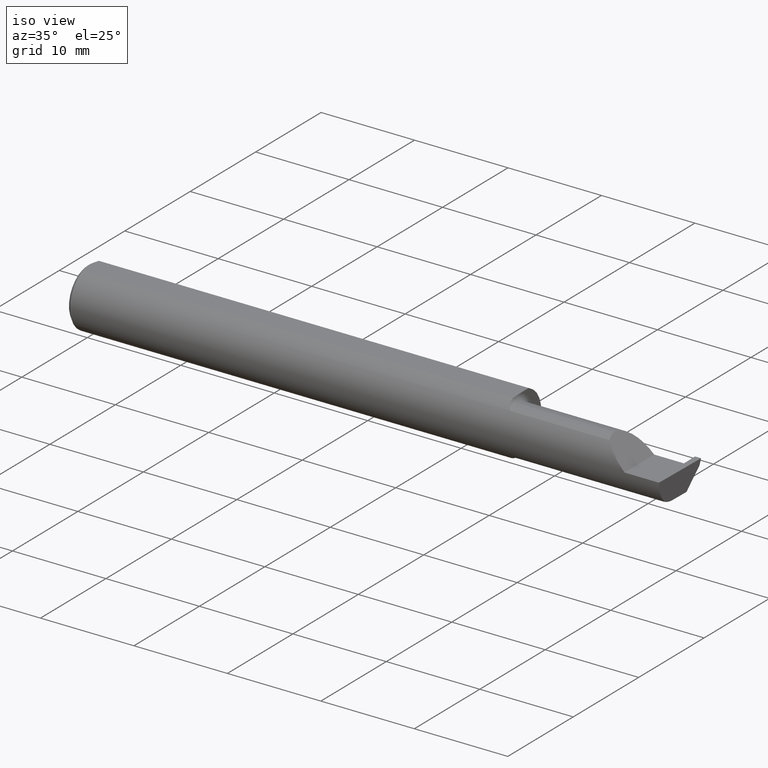
[diagram: clean part render]
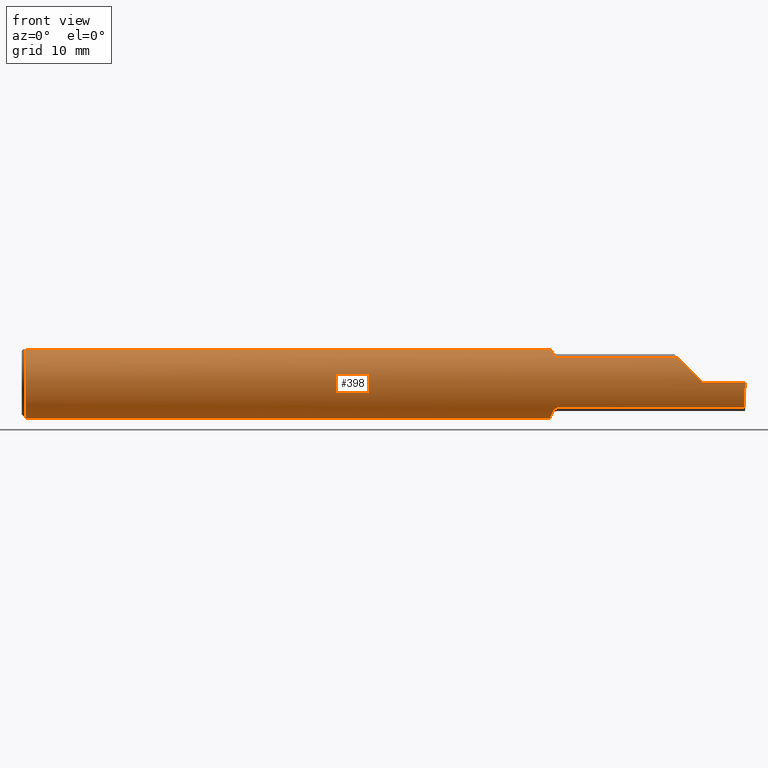
[diagram: tour spotlight — one face highlighted and labeled with its STEP entity id]
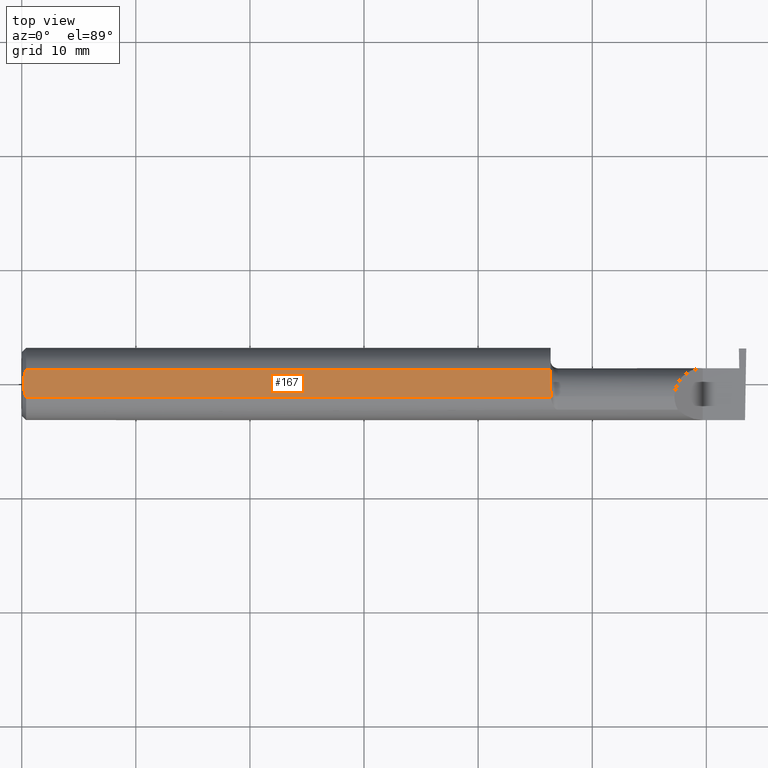
[diagram: tour spotlight — one face highlighted and labeled with its STEP entity id]
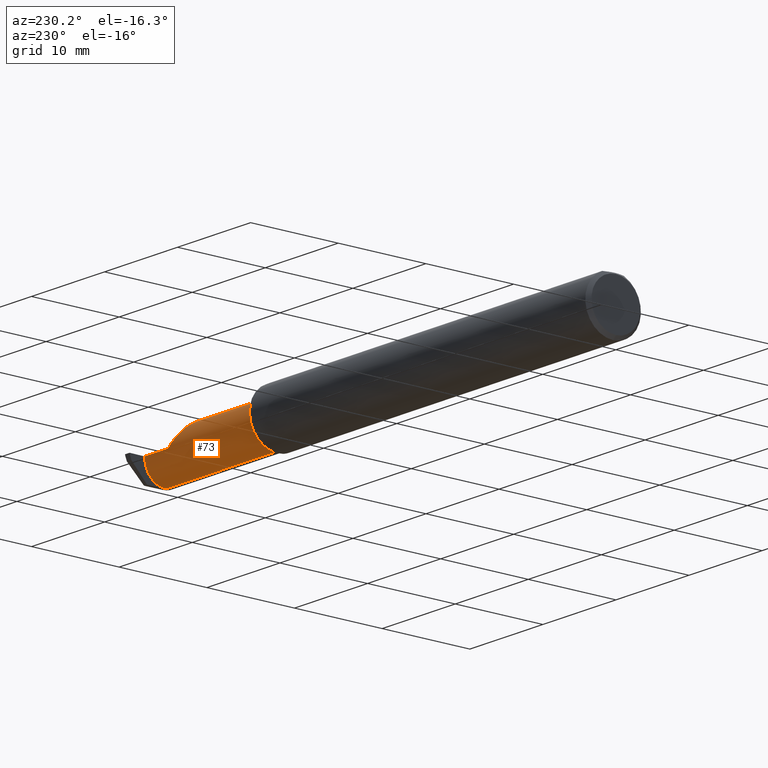
[diagram: tour spotlight — one face highlighted and labeled with its STEP entity id]
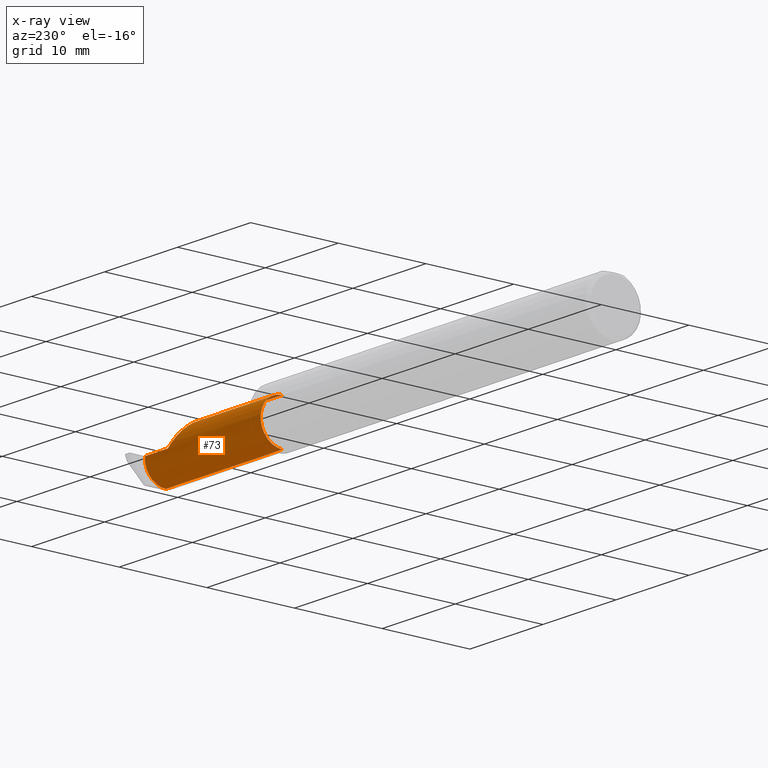
[diagram: x-ray of the same camera — body ghosted, this tour face saturated]
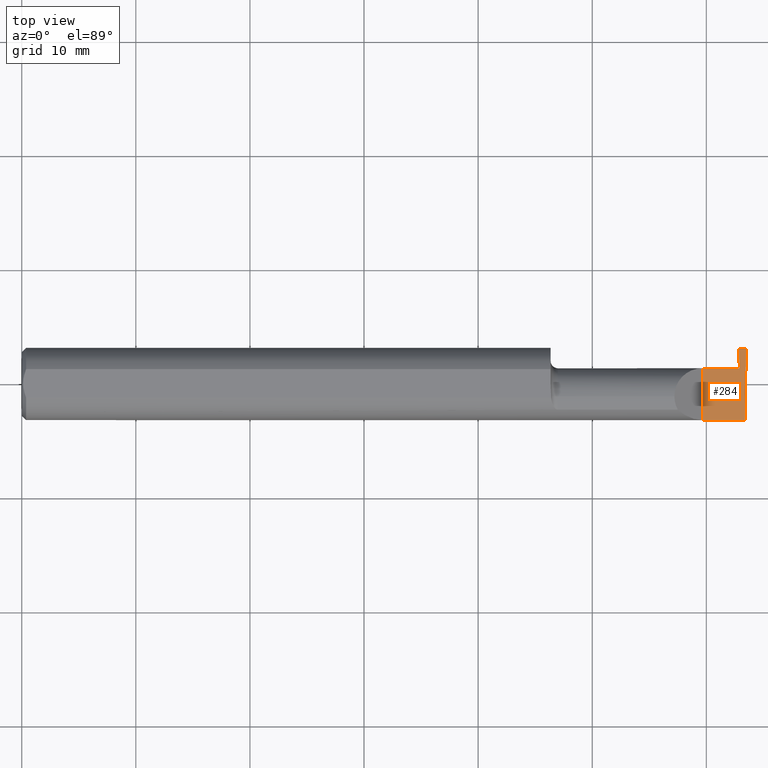
[diagram: tour spotlight — one face highlighted and labeled with its STEP entity id]
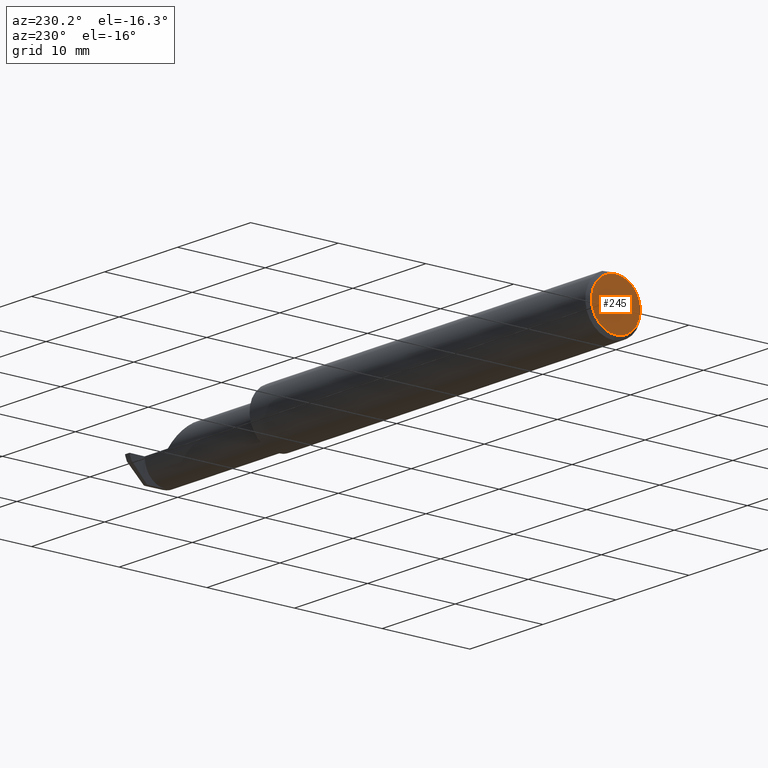
[diagram: tour spotlight — one face highlighted and labeled with its STEP entity id]
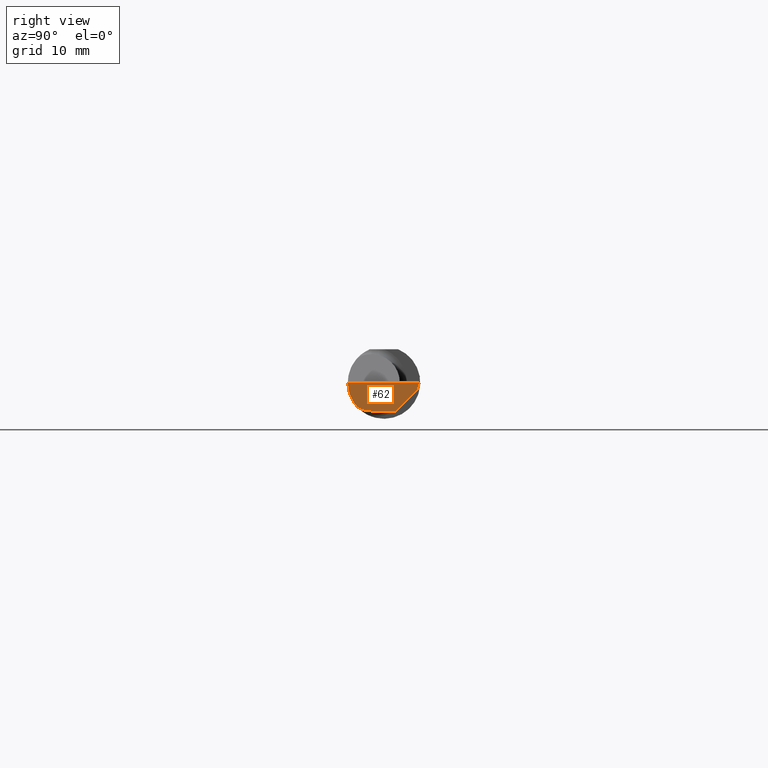
[diagram: tour spotlight — one face highlighted and labeled with its STEP entity id]
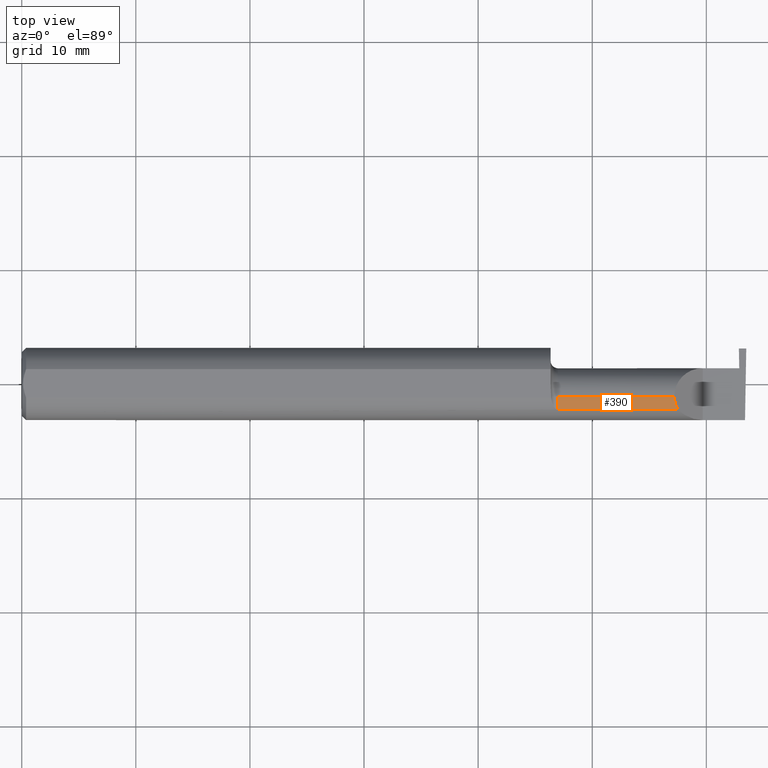
[diagram: tour spotlight — one face highlighted and labeled with its STEP entity id]
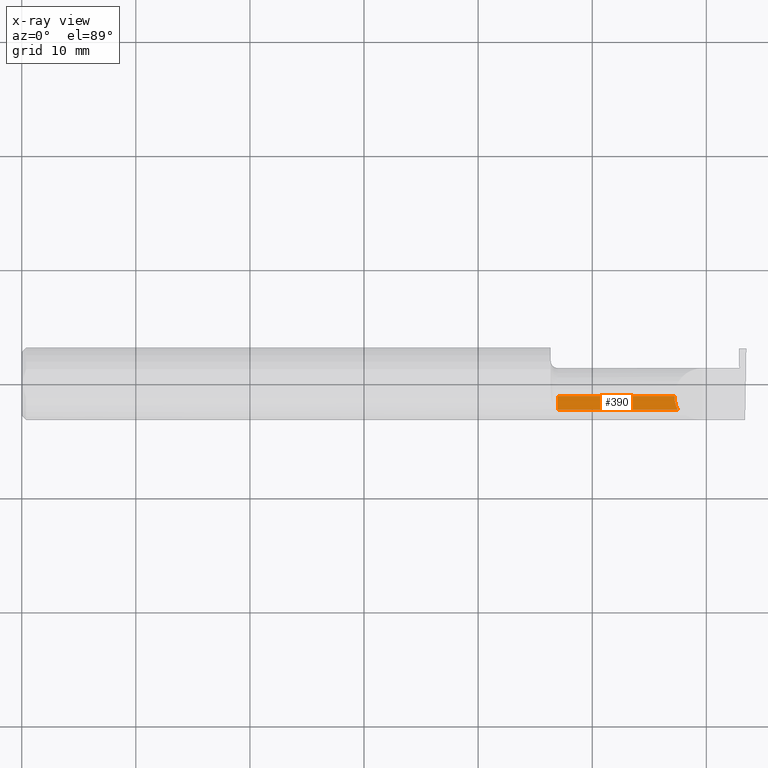
[diagram: x-ray of the same camera — body ghosted, this tour face saturated]
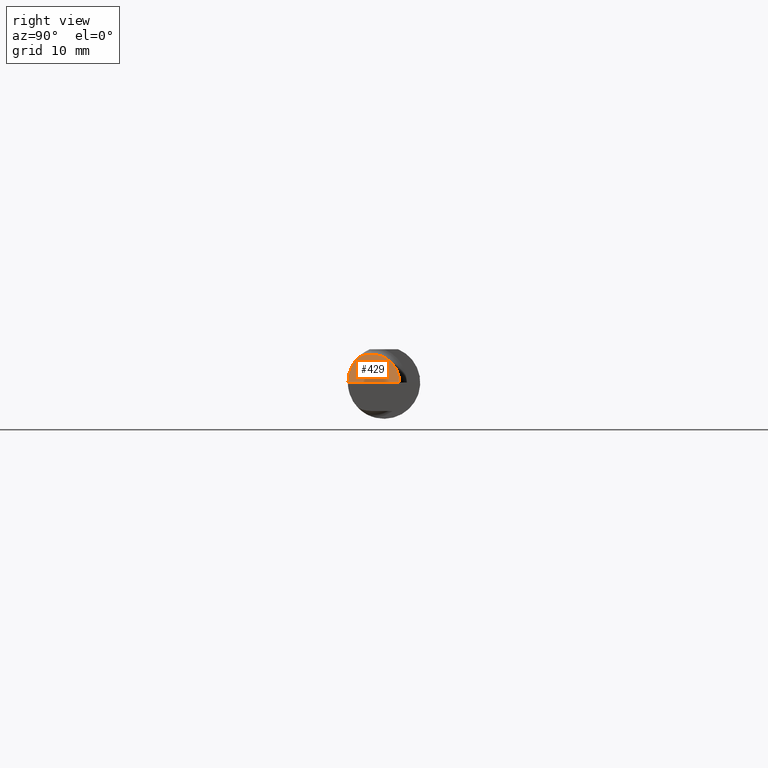
[diagram: tour spotlight — one face highlighted and labeled with its STEP entity id]
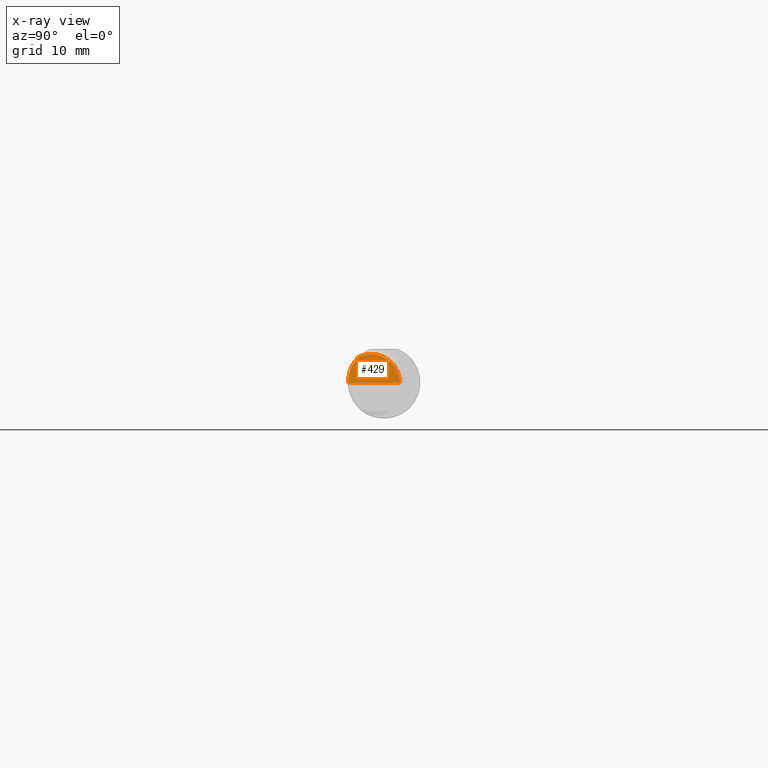
[diagram: x-ray of the same camera — body ghosted, this tour face saturated]
A machine part: a face-by-face anatomy tour. The part has 22 B-rep faces; the first image is the clean iso view, then the 8 largest visible faces are spotlighted one at a time (largest first), each with its STEP entity span.

Face 1 — front view, entity #398. In plain terms, the highlighted cylindrical surface (edge-blend (fillet) strip) has radius 3.1712 mm, axis along (-1, -0, -0).
Definition (entity closure, byte-faithful):
#9 = EDGE_CURVE ( 'NONE', #768, #146, #781, .T. ) ;
#13 = CARTESIAN_POINT ( 'NONE',  ( 1.825756598855983848, -0.04384999999999998621, -0.1168961077196328247 ) ) ;
#15 = B_SPLINE_CURVE_WITH_KNOTS ( 'NONE', 3,
 ( #13, #676, #382, #269 ),
 .UNSPECIFIED., .F., .F.,
 ( 4, 4 ),
 ( 0.001640801893433598479, 0.002088276671954516356 ),
 .UNSPECIFIED. ) ;
#16 = VERTEX_POINT ( 'NONE', #338 ) ;
#30 = CARTESIAN_POINT ( 'NONE',  ( 2.494033449660867152, -0.09015216647662478711, -0.08637192471845772657 ) ) ;
#31 = CARTESIAN_POINT ( 'NONE',  ( 2.287163018370355072, -0.1127002472623170187, 0.06283698162964532208 ) ) ;
#32 = ORIENTED_EDGE ( 'NONE', *, *, #236, .F. ) ;
#33 = DIRECTION ( 'NONE',  ( -1.000000000000000000, -0.000000000000000000, -0.000000000000000000 ) ) ;
#43 = CARTESIAN_POINT ( 'NONE',  ( 1.824999999999999734, 0.000000000000000000, 0.000000000000000000 ) ) ;
#45 = EDGE_CURVE ( 'NONE', #16, #768, #488, .T. ) ;
#52 = CARTESIAN_POINT ( 'NONE',  ( 1.847502509400849924, -0.09015216647698162666, 0.08637192471808539940 ) ) ;
#68 = CARTESIAN_POINT ( 'NONE',  ( 1.839311064734461043, -0.08485061678078664738, -0.09161469295857048445 ) ) ;
#82 = CARTESIAN_POINT ( 'NONE',  ( 1.825756598855983848, -0.04384999999999998621, -0.1168961077196328247 ) ) ;
#86 = DIRECTION ( 'NONE',  ( -1.000000000000000000, -0.000000000000000000, -0.000000000000000000 ) ) ;
#88 = CARTESIAN_POINT ( 'NONE',  ( 0.01499999999999999944, 0.000000000000000000, 0.000000000000000000 ) ) ;
#89 = CARTESIAN_POINT ( 'NONE',  ( 2.317406910344189441, -0.1248500000000000582, 0.03259308965581153572 ) ) ;
#92 = CARTESIAN_POINT ( 'NONE',  ( 0.01499999999999999944, 0.000000000000000000, 0.000000000000000000 ) ) ;
#101 = DIRECTION ( 'NONE',  ( 0.000000000000000000, 0.000000000000000000, 1.000000000000000000 ) ) ;
#107 = ORIENTED_EDGE ( 'NONE', *, *, #521, .F. ) ;
#114 = ORIENTED_EDGE ( 'NONE', *, *, #45, .T. ) ;
#119 = CIRCLE ( 'NONE', #263, 0.1248500000000000026 ) ;
#127 = CARTESIAN_POINT ( 'NONE',  ( 2.495688583004118666, -0.1248499869621840785, -5.705736120965713455E-05 ) ) ;
#137 = CARTESIAN_POINT ( 'NONE',  ( 1.833278800716857448, -0.07573621487658335760, -0.09938639293507173234 ) ) ;
#138 = ORIENTED_EDGE ( 'NONE', *, *, #323, .F. ) ;
#142 = CARTESIAN_POINT ( 'NONE',  ( 0.01499999999999987454, 0.04895916665957496944, 0.1148500000000000076 ) ) ;
#144 = DIRECTION ( 'NONE',  ( 0.000000000000000000, 0.000000000000000000, 1.000000000000000000 ) ) ;
#146 = VERTEX_POINT ( 'NONE', #425 ) ;
#150 = CARTESIAN_POINT ( 'NONE',  ( 1.849999999999999867, -0.09015216647662475935, -0.08637192471845775432 ) ) ;
#162 = CARTESIAN_POINT ( 'NONE',  ( 1.849999999999999867, -0.09015216647662482874, 0.08637192471845771269 ) ) ;
#163 = B_SPLINE_CURVE_WITH_KNOTS ( 'NONE', 3,
 ( #372, #325, #507, #617, #68, #680, #137, #518, #222, #742, #341, #629 ),
 .UNSPECIFIED., .F., .F.,
 ( 4, 2, 2, 2, 2, 4 ),
 ( 1.963988863453624846E-07, 0.0002052720857047482257, 0.0004103477725231510602, 0.0008204991461599665413, 0.001230650519796782456, 0.001640801893433598479 ),
 .UNSPECIFIED. ) ;
#169 = DIRECTION ( 'NONE',  ( 0.02617296143184117893, -0.0004568507411563391195, 0.9996573249755575929 ) ) ;
#173 = B_SPLINE_CURVE_WITH_KNOTS ( 'NONE', 3,
 ( #719, #596, #188, #543, #662, #657, #486, #363, #52, #494 ),
 .UNSPECIFIED., .F., .F.,
 ( 4, 2, 2, 2, 4 ),
 ( 5.065792501958445587E-07, 0.0007388407002080924022, 0.001108007760687040964, 0.001292591290926509281, 0.001477174821165978032 ),
 .UNSPECIFIED. ) ;
#180 = DIRECTION ( 'NONE',  ( -1.000000000000000000, -0.000000000000000000, -0.000000000000000000 ) ) ;
#182 = VERTEX_POINT ( 'NONE', #142 ) ;
#188 = CARTESIAN_POINT ( 'NONE',  ( 1.829335346929731987, -0.06618116991733533072, 0.1062694618618283127 ) ) ;
#206 = CARTESIAN_POINT ( 'NONE',  ( 1.824999999999999734, 0.04895916665957496944, 0.1148500000000000076 ) ) ;
#213 = DIRECTION ( 'NONE',  ( -1.000000000000000000, -0.000000000000000000, -0.000000000000000000 ) ) ;
#217 = VERTEX_POINT ( 'NONE', #82 ) ;
#222 = CARTESIAN_POINT ( 'NONE',  ( 1.828850144156349167, -0.06295012366509156188, -0.1079450122012245161 ) ) ;
#229 = VERTEX_POINT ( 'NONE', #206 ) ;
#236 = EDGE_CURVE ( 'NONE', #612, #591, #567, .T. ) ;
#251 = LINE ( 'NONE', #501, #737 ) ;
#254 = EDGE_CURVE ( 'NONE', #217, #512, #15, .T. ) ;
#263 = AXIS2_PLACEMENT_3D ( 'NONE', #43, #713, #766 ) ;
#269 = CARTESIAN_POINT ( 'NONE',  ( 1.824999999999999734, -0.02715330672748003313, -0.1218614805168695830 ) ) ;
#270 = ORIENTED_EDGE ( 'NONE', *, *, #514, .T. ) ;
#288 = EDGE_LOOP ( 'NONE', ( #348, #333, #270, #114, #299, #107, #383, #32, #138, #764, #552, #575, #537, #458 ) ) ;
#290 = VERTEX_POINT ( 'NONE', #127 ) ;
#297 = LINE ( 'NONE', #409, #774 ) ;
#299 = ORIENTED_EDGE ( 'NONE', *, *, #9, .T. ) ;
#302 = EDGE_CURVE ( 'NONE', #345, #217, #163, .T. ) ;
#319 = CIRCLE ( 'NONE', #331, 0.1248500000000000026 ) ;
#323 = EDGE_CURVE ( 'NONE', #740, #612, #319, .T. ) ;
#325 = CARTESIAN_POINT ( 'NONE',  ( 1.847259638933030468, -0.09015216647662495364, -0.08637192471845754616 ) ) ;
#331 = AXIS2_PLACEMENT_3D ( 'NONE', #92, #86, #101 ) ;
#332 = CARTESIAN_POINT ( 'NONE',  ( 0.000000000000000000, -0.04895916665957456698, 0.1148500000000000076 ) ) ;
#333 = ORIENTED_EDGE ( 'NONE', *, *, #376, .T. ) ;
#335 = VERTEX_POINT ( 'NONE', #467 ) ;
#338 = CARTESIAN_POINT ( 'NONE',  ( 2.495690077103728921, -0.1248499999950964945, 8.800986592364463999E-18 ) ) ;
#341 = CARTESIAN_POINT ( 'NONE',  ( 1.826227715916084904, -0.04883822427082834539, -0.1150249279297937688 ) ) ;
#345 = VERTEX_POINT ( 'NONE', #150 ) ;
#348 = ORIENTED_EDGE ( 'NONE', *, *, #631, .F. ) ;
#351 = DIRECTION ( 'NONE',  ( 1.000000000000000000, 0.000000000000000000, 0.000000000000000000 ) ) ;
#360 = CARTESIAN_POINT ( 'NONE',  ( 1.824999999999999734, -0.02715330672748003313, -0.1218614805168695830 ) ) ;
#363 = CARTESIAN_POINT ( 'NONE',  ( 1.845195245915188798, -0.08928014009842923093, 0.08728826463235835054 ) ) ;
#366 = VERTEX_POINT ( 'NONE', #162 ) ;
#372 = CARTESIAN_POINT ( 'NONE',  ( 1.849999999999999867, -0.09015216647662475935, -0.08637192471845775432 ) ) ;
#376 = EDGE_CURVE ( 'NONE', #335, #290, #513, .T. ) ;
#382 = CARTESIAN_POINT ( 'NONE',  ( 1.824999999999999734, -0.03284222813693379872, -0.1205938689030582739 ) ) ;
#383 = ORIENTED_EDGE ( 'NONE', *, *, #526, .F. ) ;
#388 = DIRECTION ( 'NONE',  ( 0.000000000000000000, 0.000000000000000000, 1.000000000000000000 ) ) ;
#395 = CARTESIAN_POINT ( 'NONE',  ( 2.350000000000000089, -0.1248500000000000026, 1.836970198721028825E-17 ) ) ;
#398 = ADVANCED_FACE ( 'NONE', ( #405 ), #752, .T. ) ;
#403 = EDGE_CURVE ( 'NONE', #182, #740, #431, .T. ) ;
#405 = FACE_OUTER_BOUND ( 'NONE', #288, .T. ) ;
#409 = CARTESIAN_POINT ( 'NONE',  ( 2.162250000000000227, -0.09015216647662478711, 0.08637192471845772657 ) ) ;
#425 = CARTESIAN_POINT ( 'NONE',  ( 2.263628075281542973, -0.09015216647662444016, 0.08637192471845807351 ) ) ;
#431 = CIRCLE ( 'NONE', #610, 0.1248500000000000026 ) ;
#444 = VECTOR ( 'NONE', #574, 39.37007874015748143 ) ;
#458 = ORIENTED_EDGE ( 'NONE', *, *, #302, .F. ) ;
#461 = DIRECTION ( 'NONE',  ( -1.000000000000000000, -0.000000000000000000, -0.000000000000000000 ) ) ;
#467 = CARTESIAN_POINT ( 'NONE',  ( 2.494033449660867152, -0.09015216647662478711, -0.08637192471845772657 ) ) ;
#473 = CARTESIAN_POINT ( 'NONE',  ( 2.495688583004118666, -0.1248499869621840785, -5.705736120965713455E-05 ) ) ;
#480 = EDGE_CURVE ( 'NONE', #512, #229, #119, .T. ) ;
#486 = CARTESIAN_POINT ( 'NONE',  ( 1.841486677516483095, -0.08696861555848796332, 0.08959154238187706787 ) ) ;
#487 = VECTOR ( 'NONE', #180, 39.37007874015748143 ) ;
#488 = LINE ( 'NONE', #788, #487 ) ;
#494 = CARTESIAN_POINT ( 'NONE',  ( 1.849999999999999867, -0.09015216647662482874, 0.08637192471845771269 ) ) ;
#501 = CARTESIAN_POINT ( 'NONE',  ( 2.162250000000000227, -0.09015216647662478711, -0.08637192471845772657 ) ) ;
#506 = DIRECTION ( 'NONE',  ( -1.000000000000000000, -0.000000000000000000, -0.000000000000000000 ) ) ;
#507 = CARTESIAN_POINT ( 'NONE',  ( 1.844784064659361844, -0.08911389870154562409, -0.08746251087962762794 ) ) ;
#512 = VERTEX_POINT ( 'NONE', #360 ) ;
#513 =( BOUNDED_CURVE ( )  B_SPLINE_CURVE ( 3, ( #30, #590, #746, #473 ),
 .UNSPECIFIED., .F., .T. ) 
 B_SPLINE_CURVE_WITH_KNOTS ( ( 4, 4 ),
 ( 0.2190942387645736789, 0.9826237902197102470 ),
 .UNSPECIFIED. ) 
 CURVE ( )  GEOMETRIC_REPRESENTATION_ITEM ( )  RATIONAL_B_SPLINE_CURVE ( ( 1.000000000000000000, 0.9520057322288818513, 0.9520057322288818513, 1.000000000000000000 ) ) 
 REPRESENTATION_ITEM ( '' )  );
#514 = EDGE_CURVE ( 'NONE', #290, #16, #604, .T. ) ;
#518 = CARTESIAN_POINT ( 'NONE',  ( 1.830064983703084902, -0.06736177101644134912, -0.1052426774175049123 ) ) ;
#521 = EDGE_CURVE ( 'NONE', #366, #146, #297, .T. ) ;
#526 = EDGE_CURVE ( 'NONE', #591, #366, #173, .T. ) ;
#537 = ORIENTED_EDGE ( 'NONE', *, *, #254, .F. ) ;
#543 = CARTESIAN_POINT ( 'NONE',  ( 1.834117122045984649, -0.07738857672837949619, 0.09808127502721006308 ) ) ;
#549 = AXIS2_PLACEMENT_3D ( 'NONE', #750, #213, #144 ) ;
#552 = ORIENTED_EDGE ( 'NONE', *, *, #731, .F. ) ;
#553 = CARTESIAN_POINT ( 'NONE',  ( 2.493072779947982820, -0.1248043149033065263, -0.09996577117162364079 ) ) ;
#566 = CARTESIAN_POINT ( 'NONE',  ( 0.01499999999999999944, -0.04895916665957456698, 0.1148500000000000076 ) ) ;
#567 = LINE ( 'NONE', #332, #444 ) ;
#574 = DIRECTION ( 'NONE',  ( 1.000000000000000000, 0.000000000000000000, 0.000000000000000000 ) ) ;
#575 = ORIENTED_EDGE ( 'NONE', *, *, #480, .F. ) ;
#590 = CARTESIAN_POINT ( 'NONE',  ( 2.494256244271086054, -0.1126860773865890342, -0.06285177167860774017 ) ) ;
#591 = VERTEX_POINT ( 'NONE', #623 ) ;
#596 = CARTESIAN_POINT ( 'NONE',  ( 1.827489051389916908, -0.05793447593726083755, 0.1110239341510881883 ) ) ;
#604 = LINE ( 'NONE', #553, #778 ) ;
#607 = VECTOR ( 'NONE', #33, 39.37007874015748143 ) ;
#610 = AXIS2_PLACEMENT_3D ( 'NONE', #88, #461, #388 ) ;
#612 = VERTEX_POINT ( 'NONE', #566 ) ;
#617 = CARTESIAN_POINT ( 'NONE',  ( 1.840875432832429937, -0.08647060418110438795, -0.09007670266896472544 ) ) ;
#623 = CARTESIAN_POINT ( 'NONE',  ( 1.826326891871132618, -0.04895916665958127689, 0.1148500000000000076 ) ) ;
#629 = CARTESIAN_POINT ( 'NONE',  ( 1.825756598855983848, -0.04384999999999998621, -0.1168961077196328247 ) ) ;
#631 = EDGE_CURVE ( 'NONE', #335, #345, #251, .T. ) ;
#633 = CARTESIAN_POINT ( 'NONE',  ( 2.350000000000000089, -0.1248500000000000026, 1.836970198721028825E-17 ) ) ;
#640 = CARTESIAN_POINT ( 'NONE',  ( 0.01499999999999999944, 0.000000000000000000, -0.1248500000000000026 ) ) ;
#657 = CARTESIAN_POINT ( 'NONE',  ( 1.839990549600782233, -0.08554147198593005375, 0.09096407607054020350 ) ) ;
#662 = CARTESIAN_POINT ( 'NONE',  ( 1.836053217927789527, -0.08094812012701396720, 0.09514231764808572800 ) ) ;
#676 = CARTESIAN_POINT ( 'NONE',  ( 1.825242610568498014, -0.03840785182185594421, -0.1189375631818110624 ) ) ;
#680 = CARTESIAN_POINT ( 'NONE',  ( 1.835226514481664628, -0.07966992494485866660, -0.09623747760188200440 ) ) ;
#690 = CARTESIAN_POINT ( 'NONE',  ( 0.000000000000000000, 0.04895916665957456698, 0.1148500000000000076 ) ) ;
#698 = LINE ( 'NONE', #690, #607 ) ;
#713 = DIRECTION ( 'NONE',  ( 1.000000000000000000, 0.000000000000000000, 0.000000000000000000 ) ) ;
#719 = CARTESIAN_POINT ( 'NONE',  ( 1.826326891871132618, -0.04895916665958127689, 0.1148500000000000076 ) ) ;
#731 = EDGE_CURVE ( 'NONE', #229, #182, #698, .T. ) ;
#737 = VECTOR ( 'NONE', #506, 39.37007874015748143 ) ;
#740 = VERTEX_POINT ( 'NONE', #640 ) ;
#742 = CARTESIAN_POINT ( 'NONE',  ( 1.826929090759343399, -0.05370719728932728948, -0.1128289886859671631 ) ) ;
#746 = CARTESIAN_POINT ( 'NONE',  ( 2.494835769263151537, -0.1248351010429638031, -0.03262966116142154011 ) ) ;
#750 = CARTESIAN_POINT ( 'NONE',  ( 0.000000000000000000, 0.000000000000000000, 0.000000000000000000 ) ) ;
#751 = CARTESIAN_POINT ( 'NONE',  ( 2.263628075281542973, -0.09015216647662444016, 0.08637192471845807351 ) ) ;
#752 = CYLINDRICAL_SURFACE ( 'NONE', #549, 0.1248500000000000026 ) ;
#764 = ORIENTED_EDGE ( 'NONE', *, *, #403, .F. ) ;
#766 = DIRECTION ( 'NONE',  ( 0.000000000000000000, 0.000000000000000000, -1.000000000000000000 ) ) ;
#768 = VERTEX_POINT ( 'NONE', #395 ) ;
#774 = VECTOR ( 'NONE', #351, 39.37007874015748143 ) ;
#778 = VECTOR ( 'NONE', #169, 39.37007874015748854 ) ;
#781 =( BOUNDED_CURVE ( )  B_SPLINE_CURVE ( 3, ( #633, #89, #31, #751 ),
 .UNSPECIFIED., .F., .T. ) 
 B_SPLINE_CURVE_WITH_KNOTS ( ( 4, 4 ),
 ( 4.712388980384690562, 5.476375539154172856 ),
 .UNSPECIFIED. ) 
 CURVE ( )  GEOMETRIC_REPRESENTATION_ITEM ( )  RATIONAL_B_SPLINE_CURVE ( ( 1.000000000000000000, 0.9519489620492034287, 0.9519489620492034287, 1.000000000000000000 ) ) 
 REPRESENTATION_ITEM ( '' )  );
#788 = CARTESIAN_POINT ( 'NONE',  ( 3.749399456654637998E-32, -0.1248500000000000026, 3.061616997868380676E-16 ) ) ;

Face 2 — top view, entity #167. In plain terms, the highlighted planar face has unit normal (0, -0, 1).
Definition (entity closure, byte-faithful):
#33 = DIRECTION ( 'NONE',  ( -1.000000000000000000, -0.000000000000000000, -0.000000000000000000 ) ) ;
#34 = CARTESIAN_POINT ( 'NONE',  ( 1.824999999999999734, -0.1248500000000000165, 0.1148500000000000076 ) ) ;
#61 = CARTESIAN_POINT ( 'NONE',  ( 1.826090261609496501, -0.02916889382056610247, 0.1148499999999999938 ) ) ;
#64 = CARTESIAN_POINT ( 'NONE',  ( 0.009415874254822407391, -0.03313958207962815206, 0.1148500000000000076 ) ) ;
#77 = B_SPLINE_CURVE_WITH_KNOTS ( 'NONE', 3,
 ( #235, #179, #651, #105, #772, #534 ),
 .UNSPECIFIED., .F., .F.,
 ( 4, 2, 4 ),
 ( 0.002396733445051244405, 0.003027584450080036006, 0.003658435455108827606 ),
 .UNSPECIFIED. ) ;
#94 = ORIENTED_EDGE ( 'NONE', *, *, #586, .T. ) ;
#96 = EDGE_CURVE ( 'NONE', #591, #228, #483, .T. ) ;
#105 = CARTESIAN_POINT ( 'NONE',  ( 0.005947935873631229539, 0.01679708999422689641, 0.1148500000000000076 ) ) ;
#118 = CARTESIAN_POINT ( 'NONE',  ( 1.826365755776839350, -0.04385000000000001397, 0.1148500000000000076 ) ) ;
#129 = CARTESIAN_POINT ( 'NONE',  ( 1.826365755776839350, -0.04385000000000001397, 0.1148500000000000076 ) ) ;
#140 = CARTESIAN_POINT ( 'NONE',  ( 0.004999999999999990563, 1.454187663965904829E-17, 0.1148500000000000076 ) ) ;
#142 = CARTESIAN_POINT ( 'NONE',  ( 0.01499999999999987454, 0.04895916665957496944, 0.1148500000000000076 ) ) ;
#152 = EDGE_LOOP ( 'NONE', ( #643, #644, #517, #694, #705, #593, #94 ) ) ;
#154 = EDGE_CURVE ( 'NONE', #228, #664, #176, .T. ) ;
#167 = ADVANCED_FACE ( 'NONE', ( #374 ), #203, .T. ) ;
#176 = B_SPLINE_CURVE_WITH_KNOTS ( 'NONE', 3,
 ( #118, #364, #61, #311, #554, #614 ),
 .UNSPECIFIED., .F., .F.,
 ( 4, 2, 4 ),
 ( 0.009485158816280163732, 0.01004274199597738476, 0.01060032517567460753 ),
 .UNSPECIFIED. ) ;
#179 = CARTESIAN_POINT ( 'NONE',  ( 0.01193974418109659125, 0.04115525648180412555, 0.1148500000000000215 ) ) ;
#182 = VERTEX_POINT ( 'NONE', #142 ) ;
#185 = CARTESIAN_POINT ( 'NONE',  ( 1.826362484150211518, -0.04555293709217374948, 0.1148500000000000076 ) ) ;
#200 = CARTESIAN_POINT ( 'NONE',  ( 0.005932194444709715242, -0.01671525318617308672, 0.1148499999999999938 ) ) ;
#203 = PLANE ( 'NONE',  #239 ) ;
#206 = CARTESIAN_POINT ( 'NONE',  ( 1.824999999999999734, 0.04895916665957496944, 0.1148500000000000076 ) ) ;
#212 = VECTOR ( 'NONE', #700, 39.37007874015748143 ) ;
#228 = VERTEX_POINT ( 'NONE', #129 ) ;
#229 = VERTEX_POINT ( 'NONE', #206 ) ;
#235 = CARTESIAN_POINT ( 'NONE',  ( 0.01499999999999987454, 0.04895916665957496944, 0.1148500000000000076 ) ) ;
#236 = EDGE_CURVE ( 'NONE', #612, #591, #567, .T. ) ;
#239 = AXIS2_PLACEMENT_3D ( 'NONE', #730, #318, #511 ) ;
#248 = CARTESIAN_POINT ( 'NONE',  ( 0.004999999999999990563, 1.454187663965904829E-17, 0.1148500000000000076 ) ) ;
#298 = CARTESIAN_POINT ( 'NONE',  ( 1.826326891871132618, -0.04895916665958127689, 0.1148500000000000076 ) ) ;
#311 = CARTESIAN_POINT ( 'NONE',  ( 1.825400391910593445, -0.01449986171080068845, 0.1148500000000000076 ) ) ;
#313 = CARTESIAN_POINT ( 'NONE',  ( 0.01195732443765547617, -0.04120008761723503027, 0.1148500000000000076 ) ) ;
#316 = EDGE_CURVE ( 'NONE', #664, #229, #337, .T. ) ;
#318 = DIRECTION ( 'NONE',  ( 0.000000000000000000, -0.000000000000000000, 1.000000000000000000 ) ) ;
#332 = CARTESIAN_POINT ( 'NONE',  ( 0.000000000000000000, -0.04895916665957456698, 0.1148500000000000076 ) ) ;
#337 = LINE ( 'NONE', #34, #212 ) ;
#364 = CARTESIAN_POINT ( 'NONE',  ( 1.826365755776839572, -0.03650543323727817313, 0.1148500000000000215 ) ) ;
#374 = FACE_OUTER_BOUND ( 'NONE', #152, .T. ) ;
#378 = CARTESIAN_POINT ( 'NONE',  ( 0.004999999999999964542, -0.008410771716546819321, 0.1148500000000000215 ) ) ;
#410 = CARTESIAN_POINT ( 'NONE',  ( 1.826365755776839350, -0.04470142088177659484, 0.1148500000000000076 ) ) ;
#432 = B_SPLINE_CURVE_WITH_KNOTS ( 'NONE', 3,
 ( #140, #378, #200, #64, #313, #446 ),
 .UNSPECIFIED., .F., .F.,
 ( 4, 2, 4 ),
 ( 0.003658435455108827606, 0.004289327297787134258, 0.004920219140465441343 ),
 .UNSPECIFIED. ) ;
#444 = VECTOR ( 'NONE', #574, 39.37007874015748143 ) ;
#446 = CARTESIAN_POINT ( 'NONE',  ( 0.01499999999999999944, -0.04895916665957456698, 0.1148500000000000076 ) ) ;
#450 = CARTESIAN_POINT ( 'NONE',  ( 1.824999999999999734, 0.0001781444078671173391, 0.1148500000000000076 ) ) ;
#483 = B_SPLINE_CURVE_WITH_KNOTS ( 'NONE', 3,
 ( #298, #658, #544, #185, #410, #652 ),
 .UNSPECIFIED., .F., .F.,
 ( 4, 2, 4 ),
 ( 0.009355882855462111999, 0.009420520835871137866, 0.009485158816280163732 ),
 .UNSPECIFIED. ) ;
#504 = EDGE_CURVE ( 'NONE', #182, #531, #77, .T. ) ;
#511 = DIRECTION ( 'NONE',  ( 1.000000000000000000, 0.000000000000000000, -0.000000000000000000 ) ) ;
#517 = ORIENTED_EDGE ( 'NONE', *, *, #154, .T. ) ;
#531 = VERTEX_POINT ( 'NONE', #248 ) ;
#534 = CARTESIAN_POINT ( 'NONE',  ( 0.004999999999999990563, 1.454187663965904829E-17, 0.1148500000000000076 ) ) ;
#544 = CARTESIAN_POINT ( 'NONE',  ( 1.826349474474282086, -0.04725615793152067312, 0.1148499999999999938 ) ) ;
#554 = CARTESIAN_POINT ( 'NONE',  ( 1.824999999999999734, -0.007185469346090035854, 0.1148500000000000076 ) ) ;
#566 = CARTESIAN_POINT ( 'NONE',  ( 0.01499999999999999944, -0.04895916665957456698, 0.1148500000000000076 ) ) ;
#567 = LINE ( 'NONE', #332, #444 ) ;
#574 = DIRECTION ( 'NONE',  ( 1.000000000000000000, 0.000000000000000000, 0.000000000000000000 ) ) ;
#586 = EDGE_CURVE ( 'NONE', #531, #612, #432, .T. ) ;
#591 = VERTEX_POINT ( 'NONE', #623 ) ;
#593 = ORIENTED_EDGE ( 'NONE', *, *, #504, .T. ) ;
#607 = VECTOR ( 'NONE', #33, 39.37007874015748143 ) ;
#612 = VERTEX_POINT ( 'NONE', #566 ) ;
#614 = CARTESIAN_POINT ( 'NONE',  ( 1.824999999999999734, 0.0001781444078671173391, 0.1148500000000000076 ) ) ;
#623 = CARTESIAN_POINT ( 'NONE',  ( 1.826326891871132618, -0.04895916665958127689, 0.1148500000000000076 ) ) ;
#643 = ORIENTED_EDGE ( 'NONE', *, *, #236, .T. ) ;
#644 = ORIENTED_EDGE ( 'NONE', *, *, #96, .T. ) ;
#651 = CARTESIAN_POINT ( 'NONE',  ( 0.009410502401328750890, 0.03310661131402438395, 0.1148499999999999938 ) ) ;
#652 = CARTESIAN_POINT ( 'NONE',  ( 1.826365755776839350, -0.04385000000000001397, 0.1148500000000000076 ) ) ;
#658 = CARTESIAN_POINT ( 'NONE',  ( 1.826339737573306587, -0.04810771292240875741, 0.1148500000000000215 ) ) ;
#664 = VERTEX_POINT ( 'NONE', #450 ) ;
#690 = CARTESIAN_POINT ( 'NONE',  ( 0.000000000000000000, 0.04895916665957456698, 0.1148500000000000076 ) ) ;
#694 = ORIENTED_EDGE ( 'NONE', *, *, #316, .T. ) ;
#698 = LINE ( 'NONE', #690, #607 ) ;
#700 = DIRECTION ( 'NONE',  ( -0.000000000000000000, 1.000000000000000000, 0.000000000000000000 ) ) ;
#705 = ORIENTED_EDGE ( 'NONE', *, *, #731, .T. ) ;
#730 = CARTESIAN_POINT ( 'NONE',  ( 2.500000000000000000, -0.1248500000000000165, 0.1148500000000000076 ) ) ;
#731 = EDGE_CURVE ( 'NONE', #229, #182, #698, .T. ) ;
#772 = CARTESIAN_POINT ( 'NONE',  ( 0.004999999999999962808, 0.008410227287019804779, 0.1148500000000000076 ) ) ;

Face 3 — auxiliary view, entity #73. An x-ray twin of the same camera follows (body ghosted, this face saturated) — the face is partly hidden behind the body. In plain terms, the highlighted cylindrical surface (edge-blend (fillet) strip) has radius 2.4892 mm, axis along (-1, -0, -0).
Definition (entity closure, byte-faithful):
#2 = CIRCLE ( 'NONE', #459, 0.09800000000000000377 ) ;
#38 = DIRECTION ( 'NONE',  ( -1.000000000000000000, -0.000000000000000000, -0.000000000000000000 ) ) ;
#39 = VERTEX_POINT ( 'NONE', #557 ) ;
#50 =( BOUNDED_CURVE ( )  B_SPLINE_CURVE ( 3, ( #292, #600, #783, #477 ),
 .UNSPECIFIED., .F., .F. ) 
 B_SPLINE_CURVE_WITH_KNOTS ( ( 4, 4 ),
 ( 3.140983202202990654, 4.463962699426421210 ),
 .UNSPECIFIED. ) 
 CURVE ( )  GEOMETRIC_REPRESENTATION_ITEM ( )  RATIONAL_B_SPLINE_CURVE ( ( 1.000000000000000000, 0.8593853101475603662, 0.8593853101475603662, 1.000000000000000000 ) ) 
 REPRESENTATION_ITEM ( '' )  );
#53 = CARTESIAN_POINT ( 'NONE',  ( 2.474831655309489342, 0.05414656493488109734, -0.008143655253979704967 ) ) ;
#73 = ADVANCED_FACE ( 'NONE', ( #174 ), #601, .T. ) ;
#75 = CARTESIAN_POINT ( 'NONE',  ( 2.350000000000000089, 0.05414999999999992042, 1.836970198721028825E-17 ) ) ;
#98 = CARTESIAN_POINT ( 'NONE',  ( 1.849999999999999867, -0.04385000000000001397, 0.000000000000000000 ) ) ;
#111 = ORIENTED_EDGE ( 'NONE', *, *, #592, .T. ) ;
#131 = EDGE_CURVE ( 'NONE', #686, #285, #573, .T. ) ;
#133 = CARTESIAN_POINT ( 'NONE',  ( 2.292592929112563738, 0.05415000000000006614, 0.05740707088743669112 ) ) ;
#147 = LINE ( 'NONE', #221, #678 ) ;
#157 = VERTEX_POINT ( 'NONE', #683 ) ;
#171 = EDGE_LOOP ( 'NONE', ( #394, #317, #535, #758, #111, #402, #391, #210 ) ) ;
#174 = FACE_OUTER_BOUND ( 'NONE', #171, .T. ) ;
#201 = AXIS2_PLACEMENT_3D ( 'NONE', #98, #38, #516 ) ;
#205 = DIRECTION ( 'NONE',  ( -1.000000000000000000, -0.000000000000000000, -0.000000000000000000 ) ) ;
#210 = ORIENTED_EDGE ( 'NONE', *, *, #131, .F. ) ;
#211 = CARTESIAN_POINT ( 'NONE',  ( 2.252000000000000668, -0.04385000000000001397, 0.09800000000000001765 ) ) ;
#221 = CARTESIAN_POINT ( 'NONE',  ( 1.824999999999999956, -0.04385000000000000703, -0.09800000000000001765 ) ) ;
#238 = DIRECTION ( 'NONE',  ( -1.000000000000000000, -0.000000000000000000, -0.000000000000000000 ) ) ;
#249 = CARTESIAN_POINT ( 'NONE',  ( 2.474499999999999922, 0.05414999123725582758, -4.144270477499261866E-05 ) ) ;
#261 = CARTESIAN_POINT ( 'NONE',  ( 2.252000000000000668, -0.04385000000000001397, 0.09800000000000001765 ) ) ;
#265 = CIRCLE ( 'NONE', #201, 0.09800000000000001765 ) ;
#285 = VERTEX_POINT ( 'NONE', #622 ) ;
#287 = CARTESIAN_POINT ( 'NONE',  ( 2.474499999999999922, -0.04385000000000001397, 0.000000000000000000 ) ) ;
#292 = CARTESIAN_POINT ( 'NONE',  ( 2.479353376795600639, -0.04385000000000004172, -0.09800000000000000377 ) ) ;
#317 = ORIENTED_EDGE ( 'NONE', *, *, #736, .T. ) ;
#327 = CARTESIAN_POINT ( 'NONE',  ( 2.252000000000000668, 0.01355707088743671532, 0.09800000000000000377 ) ) ;
#336 = EDGE_CURVE ( 'NONE', #406, #545, #265, .T. ) ;
#361 = CARTESIAN_POINT ( 'NONE',  ( 2.475482208140546536, 0.05115612325138245431, -0.02403823089877875005 ) ) ;
#377 = VECTOR ( 'NONE', #205, 39.37007874015748143 ) ;
#391 = ORIENTED_EDGE ( 'NONE', *, *, #454, .T. ) ;
#394 = ORIENTED_EDGE ( 'NONE', *, *, #449, .F. ) ;
#402 = ORIENTED_EDGE ( 'NONE', *, *, #618, .T. ) ;
#406 = VERTEX_POINT ( 'NONE', #464 ) ;
#420 = DIRECTION ( 'NONE',  ( -1.000000000000000000, -0.000000000000000000, -0.000000000000000000 ) ) ;
#428 = CARTESIAN_POINT ( 'NONE',  ( 1.849999999999999867, -0.04385000000000000009, -0.09800000000000003153 ) ) ;
#430 = DIRECTION ( 'NONE',  ( 0.000000000000000000, 0.000000000000000000, 1.000000000000000000 ) ) ;
#436 = CARTESIAN_POINT ( 'NONE',  ( 2.475482208140546536, 0.05115612325138245431, -0.02403823089877875005 ) ) ;
#449 = EDGE_CURVE ( 'NONE', #39, #686, #50, .T. ) ;
#454 = EDGE_CURVE ( 'NONE', #588, #285, #2, .T. ) ;
#459 = AXIS2_PLACEMENT_3D ( 'NONE', #287, #420, #703 ) ;
#464 = CARTESIAN_POINT ( 'NONE',  ( 1.849999999999999867, -0.04385000000000001397, 0.09800000000000003153 ) ) ;
#477 = CARTESIAN_POINT ( 'NONE',  ( 2.475482208140546536, 0.05115612325138245431, -0.02403823089877875005 ) ) ;
#482 = CARTESIAN_POINT ( 'NONE',  ( 1.824999999999999956, -0.04385000000000001397, 0.000000000000000000 ) ) ;
#510 = DIRECTION ( 'NONE',  ( 1.000000000000000000, 0.000000000000000000, 0.000000000000000000 ) ) ;
#516 = DIRECTION ( 'NONE',  ( 0.000000000000000000, 0.000000000000000000, 1.000000000000000000 ) ) ;
#535 = ORIENTED_EDGE ( 'NONE', *, *, #336, .F. ) ;
#545 = VERTEX_POINT ( 'NONE', #428 ) ;
#557 = CARTESIAN_POINT ( 'NONE',  ( 2.479353376795600639, -0.04385000000000004172, -0.09800000000000000377 ) ) ;
#568 = LINE ( 'NONE', #616, #708 ) ;
#573 =( BOUNDED_CURVE ( )  B_SPLINE_CURVE ( 3, ( #361, #773, #53, #249 ),
 .UNSPECIFIED., .F., .T. ) 
 B_SPLINE_CURVE_WITH_KNOTS ( ( 4, 4 ),
 ( 4.463962699426424763, 4.711356644242684411 ),
 .UNSPECIFIED. ) 
 CURVE ( )  GEOMETRIC_REPRESENTATION_ITEM ( )  RATIONAL_B_SPLINE_CURVE ( ( 1.000000000000000000, 0.9949061863229000657, 0.9949061863229000657, 1.000000000000000000 ) ) 
 REPRESENTATION_ITEM ( '' )  );
#579 = DIRECTION ( 'NONE',  ( -1.000000000000000000, -0.000000000000000000, -0.000000000000000000 ) ) ;
#588 = VERTEX_POINT ( 'NONE', #621 ) ;
#592 = EDGE_CURVE ( 'NONE', #789, #157, #647, .T. ) ;
#600 = CARTESIAN_POINT ( 'NONE',  ( 2.479354867654528061, 0.002850604310161276075, -0.09800000000000003153 ) ) ;
#601 = CYLINDRICAL_SURFACE ( 'NONE', #735, 0.09800000000000001765 ) ;
#616 = CARTESIAN_POINT ( 'NONE',  ( 1.824999999999999956, 0.05415000000000000369, 8.266365894244626938E-17 ) ) ;
#618 = EDGE_CURVE ( 'NONE', #157, #588, #568, .T. ) ;
#621 = CARTESIAN_POINT ( 'NONE',  ( 2.474499999999999922, 0.05414999999999999675, 8.266369305117045545E-17 ) ) ;
#622 = CARTESIAN_POINT ( 'NONE',  ( 2.474499999999999922, 0.05414999123725582758, -4.144270477499261866E-05 ) ) ;
#645 = EDGE_CURVE ( 'NONE', #789, #406, #669, .T. ) ;
#647 =( BOUNDED_CURVE ( )  B_SPLINE_CURVE ( 3, ( #261, #327, #133, #75 ),
 .UNSPECIFIED., .F., .F. ) 
 B_SPLINE_CURVE_WITH_KNOTS ( ( 4, 4 ),
 ( 0.000000000000000000, 1.570796326794896558 ),
 .UNSPECIFIED. ) 
 CURVE ( )  GEOMETRIC_REPRESENTATION_ITEM ( )  RATIONAL_B_SPLINE_CURVE ( ( 1.000000000000000000, 0.8047378541243649375, 0.8047378541243649375, 1.000000000000000000 ) ) 
 REPRESENTATION_ITEM ( '' )  );
#669 = LINE ( 'NONE', #738, #377 ) ;
#678 = VECTOR ( 'NONE', #579, 39.37007874015748143 ) ;
#683 = CARTESIAN_POINT ( 'NONE',  ( 2.350000000000000089, 0.05414999999999992042, 1.836970198721028825E-17 ) ) ;
#686 = VERTEX_POINT ( 'NONE', #436 ) ;
#703 = DIRECTION ( 'NONE',  ( 0.000000000000000000, 0.000000000000000000, 1.000000000000000000 ) ) ;
#708 = VECTOR ( 'NONE', #510, 39.37007874015748143 ) ;
#735 = AXIS2_PLACEMENT_3D ( 'NONE', #482, #238, #430 ) ;
#736 = EDGE_CURVE ( 'NONE', #39, #545, #147, .T. ) ;
#738 = CARTESIAN_POINT ( 'NONE',  ( 1.824999999999999956, -0.04385000000000001397, 0.09800000000000001765 ) ) ;
#758 = ORIENTED_EDGE ( 'NONE', *, *, #645, .F. ) ;
#773 = CARTESIAN_POINT ( 'NONE',  ( 2.475160734290017484, 0.05314349951121610793, -0.01618353831829628942 ) ) ;
#783 = CARTESIAN_POINT ( 'NONE',  ( 2.477853341463135184, 0.03970102213383035900, -0.06931214282740398580 ) ) ;
#789 = VERTEX_POINT ( 'NONE', #211 ) ;

Face 4 — top view, entity #284. In plain terms, the highlighted planar face has unit normal (-0, 0, -1).
Definition (entity closure, byte-faithful):
#3 = AXIS2_PLACEMENT_3D ( 'NONE', #192, #135, #379 ) ;
#6 = PLANE ( 'NONE',  #3 ) ;
#10 = LINE ( 'NONE', #671, #499 ) ;
#16 = VERTEX_POINT ( 'NONE', #338 ) ;
#36 = ORIENTED_EDGE ( 'NONE', *, *, #427, .T. ) ;
#45 = EDGE_CURVE ( 'NONE', #16, #768, #488, .T. ) ;
#54 = VECTOR ( 'NONE', #373, 39.37007874015748143 ) ;
#57 = VECTOR ( 'NONE', #218, 39.37007874015748143 ) ;
#76 = DIRECTION ( 'NONE',  ( 0.01744642479411244104, 0.9998477995484630343, -2.135106780035405654E-18 ) ) ;
#81 = ORIENTED_EDGE ( 'NONE', *, *, #45, .F. ) ;
#126 = DIRECTION ( 'NONE',  ( -0.000000000000000000, 1.000000000000000000, -0.000000000000000000 ) ) ;
#128 = CARTESIAN_POINT ( 'NONE',  ( 2.500000000000000000, 0.05414999999999998981, -4.017921862786682551E-33 ) ) ;
#135 = DIRECTION ( 'NONE',  ( -1.224646799147352221E-16, 0.000000000000000000, -1.000000000000000000 ) ) ;
#145 = VECTOR ( 'NONE', #665, 39.37007874015748143 ) ;
#148 = CARTESIAN_POINT ( 'NONE',  ( 2.474499999999999922, 0.1221499999999999808, -3.306546357697866753E-19 ) ) ;
#157 = VERTEX_POINT ( 'NONE', #683 ) ;
#180 = DIRECTION ( 'NONE',  ( -1.000000000000000000, -0.000000000000000000, -0.000000000000000000 ) ) ;
#192 = CARTESIAN_POINT ( 'NONE',  ( 2.500000000000000000, -0.2000000000000000111, 0.000000000000000000 ) ) ;
#218 = DIRECTION ( 'NONE',  ( 0.01742050049977532031, -0.9998482515673753346, -2.130797594924657633E-18 ) ) ;
#233 = ORIENTED_EDGE ( 'NONE', *, *, #443, .F. ) ;
#240 = VECTOR ( 'NONE', #126, 39.37007874015748143 ) ;
#279 = LINE ( 'NONE', #525, #57 ) ;
#284 = ADVANCED_FACE ( 'NONE', ( #725 ), #6, .F. ) ;
#296 = EDGE_CURVE ( 'NONE', #16, #701, #10, .T. ) ;
#308 = ORIENTED_EDGE ( 'NONE', *, *, #699, .T. ) ;
#338 = CARTESIAN_POINT ( 'NONE',  ( 2.495690077103728921, -0.1248499999950964945, 8.800986592364463999E-18 ) ) ;
#349 = VERTEX_POINT ( 'NONE', #148 ) ;
#367 = CARTESIAN_POINT ( 'NONE',  ( 2.399999999999999911, 0.1221499999999999808, -3.306546357697866753E-19 ) ) ;
#373 = DIRECTION ( 'NONE',  ( -1.000000000000000000, 1.290923542073696100E-16, 1.224646799147352221E-16 ) ) ;
#379 = DIRECTION ( 'NONE',  ( -1.000000000000000000, 0.000000000000000000, 1.224646799147352221E-16 ) ) ;
#395 = CARTESIAN_POINT ( 'NONE',  ( 2.350000000000000089, -0.1248500000000000026, 1.836970198721028825E-17 ) ) ;
#427 = EDGE_CURVE ( 'NONE', #349, #470, #279, .T. ) ;
#434 = LINE ( 'NONE', #682, #240 ) ;
#443 = EDGE_CURVE ( 'NONE', #349, #701, #609, .T. ) ;
#470 = VERTEX_POINT ( 'NONE', #655 ) ;
#487 = VECTOR ( 'NONE', #180, 39.37007874015748143 ) ;
#488 = LINE ( 'NONE', #788, #487 ) ;
#499 = VECTOR ( 'NONE', #76, 39.37007874015747433 ) ;
#500 = ORIENTED_EDGE ( 'NONE', *, *, #670, .F. ) ;
#510 = DIRECTION ( 'NONE',  ( 1.000000000000000000, 0.000000000000000000, 0.000000000000000000 ) ) ;
#525 = CARTESIAN_POINT ( 'NONE',  ( 2.480118901204498627, -0.2003463912558332838, 2.434732400344322887E-18 ) ) ;
#568 = LINE ( 'NONE', #616, #708 ) ;
#578 = ORIENTED_EDGE ( 'NONE', *, *, #618, .F. ) ;
#588 = VERTEX_POINT ( 'NONE', #621 ) ;
#609 = LINE ( 'NONE', #367, #145 ) ;
#616 = CARTESIAN_POINT ( 'NONE',  ( 1.824999999999999956, 0.05415000000000000369, 8.266365894244626938E-17 ) ) ;
#618 = EDGE_CURVE ( 'NONE', #157, #588, #568, .T. ) ;
#619 = CARTESIAN_POINT ( 'NONE',  ( 2.500000000000000000, 0.1221500000000000224, 1.614031285319217924E-16 ) ) ;
#621 = CARTESIAN_POINT ( 'NONE',  ( 2.474499999999999922, 0.05414999999999999675, 8.266369305117045545E-17 ) ) ;
#630 = EDGE_LOOP ( 'NONE', ( #81, #668, #233, #36, #308, #578, #500 ) ) ;
#655 = CARTESIAN_POINT ( 'NONE',  ( 2.475684773821554607, 0.05414999999999998981, 1.856292815590049169E-17 ) ) ;
#665 = DIRECTION ( 'NONE',  ( 1.000000000000000000, -0.000000000000000000, -0.000000000000000000 ) ) ;
#668 = ORIENTED_EDGE ( 'NONE', *, *, #296, .T. ) ;
#670 = EDGE_CURVE ( 'NONE', #768, #157, #434, .T. ) ;
#671 = CARTESIAN_POINT ( 'NONE',  ( 2.494380489674781209, -0.1999019447116721915, 6.881915332554697616E-19 ) ) ;
#672 = LINE ( 'NONE', #128, #54 ) ;
#682 = CARTESIAN_POINT ( 'NONE',  ( 2.350000000000000089, -0.2000000000000000111, 1.836970198721028825E-17 ) ) ;
#683 = CARTESIAN_POINT ( 'NONE',  ( 2.350000000000000089, 0.05414999999999992042, 1.836970198721028825E-17 ) ) ;
#699 = EDGE_CURVE ( 'NONE', #470, #588, #672, .T. ) ;
#701 = VERTEX_POINT ( 'NONE', #619 ) ;
#708 = VECTOR ( 'NONE', #510, 39.37007874015748143 ) ;
#725 = FACE_OUTER_BOUND ( 'NONE', #630, .T. ) ;
#768 = VERTEX_POINT ( 'NONE', #395 ) ;
#788 = CARTESIAN_POINT ( 'NONE',  ( 3.749399456654637998E-32, -0.1248500000000000026, 3.061616997868380676E-16 ) ) ;

Face 5 — auxiliary view, entity #245. In plain terms, the highlighted planar face has unit normal (1, 0, 0).
Definition (entity closure, byte-faithful):
#44 = DIRECTION ( 'NONE',  ( 0.000000000000000000, 0.000000000000000000, 1.000000000000000000 ) ) ;
#72 = CARTESIAN_POINT ( 'NONE',  ( 0.000000000000000000, 0.000000000000000000, 0.000000000000000000 ) ) ;
#80 = PLANE ( 'NONE',  #158 ) ;
#87 = ORIENTED_EDGE ( 'NONE', *, *, #141, .T. ) ;
#102 = VERTEX_POINT ( 'NONE', #110 ) ;
#110 = CARTESIAN_POINT ( 'NONE',  ( 0.000000000000000000, 0.000000000000000000, -0.1098500000000000032 ) ) ;
#113 = DIRECTION ( 'NONE',  ( -1.000000000000000000, -0.000000000000000000, -0.000000000000000000 ) ) ;
#116 = EDGE_CURVE ( 'NONE', #102, #726, #572, .T. ) ;
#141 = EDGE_CURVE ( 'NONE', #726, #102, #472, .T. ) ;
#158 = AXIS2_PLACEMENT_3D ( 'NONE', #72, #620, #328 ) ;
#165 = ORIENTED_EDGE ( 'NONE', *, *, #116, .T. ) ;
#197 = CARTESIAN_POINT ( 'NONE',  ( 0.000000000000000000, 1.437123018799419134E-17, 0.1098500000000000032 ) ) ;
#245 = ADVANCED_FACE ( 'NONE', ( #437 ), #80, .F. ) ;
#293 = DIRECTION ( 'NONE',  ( -1.000000000000000000, -0.000000000000000000, -0.000000000000000000 ) ) ;
#306 = DIRECTION ( 'NONE',  ( 0.000000000000000000, 0.000000000000000000, 1.000000000000000000 ) ) ;
#328 = DIRECTION ( 'NONE',  ( 0.000000000000000000, 0.000000000000000000, -1.000000000000000000 ) ) ;
#352 = CARTESIAN_POINT ( 'NONE',  ( 0.000000000000000000, 0.000000000000000000, 0.000000000000000000 ) ) ;
#437 = FACE_OUTER_BOUND ( 'NONE', #625, .T. ) ;
#472 = CIRCLE ( 'NONE', #533, 0.1098500000000000032 ) ;
#533 = AXIS2_PLACEMENT_3D ( 'NONE', #352, #293, #306 ) ;
#562 = AXIS2_PLACEMENT_3D ( 'NONE', #707, #113, #44 ) ;
#572 = CIRCLE ( 'NONE', #562, 0.1098500000000000032 ) ;
#620 = DIRECTION ( 'NONE',  ( 1.000000000000000000, 0.000000000000000000, 0.000000000000000000 ) ) ;
#625 = EDGE_LOOP ( 'NONE', ( #165, #87 ) ) ;
#707 = CARTESIAN_POINT ( 'NONE',  ( 0.000000000000000000, 0.000000000000000000, 0.000000000000000000 ) ) ;
#726 = VERTEX_POINT ( 'NONE', #197 ) ;

Face 6 — right view, entity #62. In plain terms, the highlighted planar face has unit normal (-0.9995, 0.0174, 0.0262).
Definition (entity closure, byte-faithful):
#10 = LINE ( 'NONE', #671, #499 ) ;
#16 = VERTEX_POINT ( 'NONE', #338 ) ;
#17 = DIRECTION ( 'NONE',  ( -0.01744642479411243410, -0.9998477995484630343, 2.816882764651548725E-16 ) ) ;
#30 = CARTESIAN_POINT ( 'NONE',  ( 2.494033449660867152, -0.09015216647662478711, -0.08637192471845772657 ) ) ;
#58 = VECTOR ( 'NONE', #745, 39.37007874015748854 ) ;
#62 = ADVANCED_FACE ( 'NONE', ( #170 ), #416, .F. ) ;
#76 = DIRECTION ( 'NONE',  ( 0.01744642479411244104, 0.9998477995484630343, -2.135106780035405654E-18 ) ) ;
#78 = CARTESIAN_POINT ( 'NONE',  ( 2.499227245409318066, 0.1138861372810480027, -0.02399999999999999356 ) ) ;
#79 = EDGE_CURVE ( 'NONE', #701, #660, #314, .T. ) ;
#91 = LINE ( 'NONE', #455, #58 ) ;
#99 = ORIENTED_EDGE ( 'NONE', *, *, #296, .F. ) ;
#122 = AXIS2_PLACEMENT_3D ( 'NONE', #663, #244, #252 ) ;
#127 = CARTESIAN_POINT ( 'NONE',  ( 2.495688583004118666, -0.1248499869621840785, -5.705736120965713455E-05 ) ) ;
#149 = CARTESIAN_POINT ( 'NONE',  ( 2.494536841675280225, -0.04385000000000003478, -0.09799999999999998990 ) ) ;
#151 =( BOUNDED_CURVE ( )  B_SPLINE_CURVE ( 3, ( #330, #275, #160, #149 ),
 .UNSPECIFIED., .F., .F. ) 
 B_SPLINE_CURVE_WITH_KNOTS ( ( 4, 4 ),
 ( 0.09562308769838386013, 0.5877155292608426951 ),
 .UNSPECIFIED. ) 
 CURVE ( )  GEOMETRIC_REPRESENTATION_ITEM ( )  RATIONAL_B_SPLINE_CURVE ( ( 1.000000000000000000, 0.9799220177372778284, 0.9799220177372778284, 1.000000000000000000 ) ) 
 REPRESENTATION_ITEM ( '' )  );
#160 = CARTESIAN_POINT ( 'NONE',  ( 2.494253479596434175, -0.06008937020638523835, -0.09800000000000001765 ) ) ;
#161 = EDGE_CURVE ( 'NONE', #411, #541, #734, .T. ) ;
#164 = ORIENTED_EDGE ( 'NONE', *, *, #79, .F. ) ;
#169 = DIRECTION ( 'NONE',  ( 0.02617296143184117893, -0.0004568507411563391195, 0.9996573249755575929 ) ) ;
#170 = FACE_OUTER_BOUND ( 'NONE', #407, .T. ) ;
#244 = DIRECTION ( 'NONE',  ( -0.9995051766793263681, 0.01744044634006990460, 0.02617694830739123249 ) ) ;
#246 = ORIENTED_EDGE ( 'NONE', *, *, #376, .F. ) ;
#252 = DIRECTION ( 'NONE',  ( 0.02618093032612054880, 0.000000000000000000, 0.9996572206948033390 ) ) ;
#266 = CARTESIAN_POINT ( 'NONE',  ( 2.496652745773395576, 0.07741163850316090667, -0.09800000000000001765 ) ) ;
#275 = CARTESIAN_POINT ( 'NONE',  ( 2.494082244196984099, -0.07583965973232809077, -0.09404455760388211183 ) ) ;
#281 = ORIENTED_EDGE ( 'NONE', *, *, #514, .F. ) ;
#290 = VERTEX_POINT ( 'NONE', #127 ) ;
#296 = EDGE_CURVE ( 'NONE', #16, #701, #10, .T. ) ;
#314 = LINE ( 'NONE', #421, #509 ) ;
#330 = CARTESIAN_POINT ( 'NONE',  ( 2.494033449660867152, -0.09015216647662478711, -0.08637192471845772657 ) ) ;
#335 = VERTEX_POINT ( 'NONE', #467 ) ;
#338 = CARTESIAN_POINT ( 'NONE',  ( 2.495690077103728921, -0.1248499999950964945, 8.800986592364463999E-18 ) ) ;
#376 = EDGE_CURVE ( 'NONE', #335, #290, #513, .T. ) ;
#407 = EDGE_LOOP ( 'NONE', ( #484, #418, #763, #164, #99, #281, #246 ) ) ;
#411 = VERTEX_POINT ( 'NONE', #691 ) ;
#416 = PLANE ( 'NONE',  #122 ) ;
#418 = ORIENTED_EDGE ( 'NONE', *, *, #161, .F. ) ;
#421 = CARTESIAN_POINT ( 'NONE',  ( 2.499907402661638134, 0.1211597610527450908, -0.002875862722115925512 ) ) ;
#455 = CARTESIAN_POINT ( 'NONE',  ( 2.499132853025170853, 0.1117231085775383936, -0.02616302870350959223 ) ) ;
#467 = CARTESIAN_POINT ( 'NONE',  ( 2.494033449660867152, -0.09015216647662478711, -0.08637192471845772657 ) ) ;
#473 = CARTESIAN_POINT ( 'NONE',  ( 2.495688583004118666, -0.1248499869621840785, -5.705736120965713455E-05 ) ) ;
#484 = ORIENTED_EDGE ( 'NONE', *, *, #741, .T. ) ;
#498 = DIRECTION ( 'NONE',  ( -0.03042981077198511977, -0.3254173858243485373, -0.9450807116958996890 ) ) ;
#499 = VECTOR ( 'NONE', #76, 39.37007874015747433 ) ;
#509 = VECTOR ( 'NONE', #498, 39.37007874015748143 ) ;
#513 =( BOUNDED_CURVE ( )  B_SPLINE_CURVE ( 3, ( #30, #590, #746, #473 ),
 .UNSPECIFIED., .F., .T. ) 
 B_SPLINE_CURVE_WITH_KNOTS ( ( 4, 4 ),
 ( 0.2190942387645736789, 0.9826237902197102470 ),
 .UNSPECIFIED. ) 
 CURVE ( )  GEOMETRIC_REPRESENTATION_ITEM ( )  RATIONAL_B_SPLINE_CURVE ( ( 1.000000000000000000, 0.9520057322288818513, 0.9520057322288818513, 1.000000000000000000 ) ) 
 REPRESENTATION_ITEM ( '' )  );
#514 = EDGE_CURVE ( 'NONE', #290, #16, #604, .T. ) ;
#541 = VERTEX_POINT ( 'NONE', #715 ) ;
#553 = CARTESIAN_POINT ( 'NONE',  ( 2.493072779947982820, -0.1248043149033065263, -0.09996577117162364079 ) ) ;
#590 = CARTESIAN_POINT ( 'NONE',  ( 2.494256244271086054, -0.1126860773865890342, -0.06285177167860774017 ) ) ;
#604 = LINE ( 'NONE', #553, #778 ) ;
#619 = CARTESIAN_POINT ( 'NONE',  ( 2.500000000000000000, 0.1221500000000000224, 1.614031285319217924E-16 ) ) ;
#660 = VERTEX_POINT ( 'NONE', #78 ) ;
#663 = CARTESIAN_POINT ( 'NONE',  ( 2.497382703856815933, 0.1221956850741156148, -0.09996573249755576207 ) ) ;
#671 = CARTESIAN_POINT ( 'NONE',  ( 2.494380489674781209, -0.1999019447116721915, 6.881915332554697616E-19 ) ) ;
#691 = CARTESIAN_POINT ( 'NONE',  ( 2.495997960279815242, 0.03988613728104774270, -0.09799999999999996214 ) ) ;
#701 = VERTEX_POINT ( 'NONE', #619 ) ;
#715 = CARTESIAN_POINT ( 'NONE',  ( 2.494536841675280225, -0.04385000000000003478, -0.09799999999999998990 ) ) ;
#734 = LINE ( 'NONE', #266, #748 ) ;
#741 = EDGE_CURVE ( 'NONE', #335, #541, #151, .T. ) ;
#745 = DIRECTION ( 'NONE',  ( -0.03084274406794365597, -0.7067703747110382073, -0.7067703747110356538 ) ) ;
#746 = CARTESIAN_POINT ( 'NONE',  ( 2.494835769263151537, -0.1248351010429638031, -0.03262966116142154011 ) ) ;
#748 = VECTOR ( 'NONE', #17, 39.37007874015747433 ) ;
#763 = ORIENTED_EDGE ( 'NONE', *, *, #785, .F. ) ;
#778 = VECTOR ( 'NONE', #169, 39.37007874015748854 ) ;
#785 = EDGE_CURVE ( 'NONE', #660, #411, #91, .T. ) ;

Face 7 — top view, entity #390. An x-ray twin of the same camera follows (body ghosted, this face saturated) — the face is partly hidden behind the body. In plain terms, the highlighted cylindrical surface (edge-blend (fillet) strip) has radius 2.4892 mm, axis along (-1, -0, -0).
Definition (entity closure, byte-faithful):
#22 = CARTESIAN_POINT ( 'NONE',  ( 1.824999999999999956, -0.04385000000000001397, 0.000000000000000000 ) ) ;
#63 = EDGE_LOOP ( 'NONE', ( #606, #466, #85, #177 ) ) ;
#74 =( BOUNDED_CURVE ( )  B_SPLINE_CURVE ( 3, ( #481, #227, #539, #242 ),
 .UNSPECIFIED., .F., .F. ) 
 B_SPLINE_CURVE_WITH_KNOTS ( ( 4, 4 ),
 ( 5.791092865617130769, 6.283185307179586232 ),
 .UNSPECIFIED. ) 
 CURVE ( )  GEOMETRIC_REPRESENTATION_ITEM ( )  RATIONAL_B_SPLINE_CURVE ( ( 1.000000000000000000, 0.9799220177372781615, 0.9799220177372781615, 1.000000000000000000 ) ) 
 REPRESENTATION_ITEM ( '' )  );
#85 = ORIENTED_EDGE ( 'NONE', *, *, #389, .F. ) ;
#146 = VERTEX_POINT ( 'NONE', #425 ) ;
#162 = CARTESIAN_POINT ( 'NONE',  ( 1.849999999999999867, -0.09015216647662482874, 0.08637192471845771269 ) ) ;
#177 = ORIENTED_EDGE ( 'NONE', *, *, #521, .T. ) ;
#205 = DIRECTION ( 'NONE',  ( -1.000000000000000000, -0.000000000000000000, -0.000000000000000000 ) ) ;
#211 = CARTESIAN_POINT ( 'NONE',  ( 2.252000000000000668, -0.04385000000000001397, 0.09800000000000001765 ) ) ;
#227 = CARTESIAN_POINT ( 'NONE',  ( 2.255955442396118116, -0.07583965973232791036, 0.09404455760388216734 ) ) ;
#242 = CARTESIAN_POINT ( 'NONE',  ( 2.252000000000000668, -0.04385000000000001397, 0.09800000000000001765 ) ) ;
#271 = DIRECTION ( 'NONE',  ( 0.000000000000000000, 0.000000000000000000, 1.000000000000000000 ) ) ;
#282 = DIRECTION ( 'NONE',  ( -1.000000000000000000, -0.000000000000000000, -0.000000000000000000 ) ) ;
#297 = LINE ( 'NONE', #409, #774 ) ;
#347 = FACE_OUTER_BOUND ( 'NONE', #63, .T. ) ;
#351 = DIRECTION ( 'NONE',  ( 1.000000000000000000, 0.000000000000000000, 0.000000000000000000 ) ) ;
#366 = VERTEX_POINT ( 'NONE', #162 ) ;
#377 = VECTOR ( 'NONE', #205, 39.37007874015748143 ) ;
#389 = EDGE_CURVE ( 'NONE', #366, #406, #759, .T. ) ;
#390 = ADVANCED_FACE ( 'NONE', ( #347 ), #522, .T. ) ;
#406 = VERTEX_POINT ( 'NONE', #464 ) ;
#409 = CARTESIAN_POINT ( 'NONE',  ( 2.162250000000000227, -0.09015216647662478711, 0.08637192471845772657 ) ) ;
#425 = CARTESIAN_POINT ( 'NONE',  ( 2.263628075281542973, -0.09015216647662444016, 0.08637192471845807351 ) ) ;
#438 = EDGE_CURVE ( 'NONE', #146, #789, #74, .T. ) ;
#464 = CARTESIAN_POINT ( 'NONE',  ( 1.849999999999999867, -0.04385000000000001397, 0.09800000000000003153 ) ) ;
#466 = ORIENTED_EDGE ( 'NONE', *, *, #645, .T. ) ;
#481 = CARTESIAN_POINT ( 'NONE',  ( 2.263628075281542973, -0.09015216647662444016, 0.08637192471845807351 ) ) ;
#521 = EDGE_CURVE ( 'NONE', #366, #146, #297, .T. ) ;
#522 = CYLINDRICAL_SURFACE ( 'NONE', #777, 0.09800000000000001765 ) ;
#539 = CARTESIAN_POINT ( 'NONE',  ( 2.252000000000000668, -0.06008937020638512733, 0.09800000000000001765 ) ) ;
#576 = DIRECTION ( 'NONE',  ( 0.000000000000000000, 0.000000000000000000, 1.000000000000000000 ) ) ;
#585 = CARTESIAN_POINT ( 'NONE',  ( 1.849999999999999867, -0.04385000000000001397, 0.000000000000000000 ) ) ;
#606 = ORIENTED_EDGE ( 'NONE', *, *, #438, .T. ) ;
#632 = DIRECTION ( 'NONE',  ( -1.000000000000000000, -0.000000000000000000, -0.000000000000000000 ) ) ;
#645 = EDGE_CURVE ( 'NONE', #789, #406, #669, .T. ) ;
#669 = LINE ( 'NONE', #738, #377 ) ;
#711 = AXIS2_PLACEMENT_3D ( 'NONE', #585, #632, #576 ) ;
#738 = CARTESIAN_POINT ( 'NONE',  ( 1.824999999999999956, -0.04385000000000001397, 0.09800000000000001765 ) ) ;
#759 = CIRCLE ( 'NONE', #711, 0.09800000000000001765 ) ;
#774 = VECTOR ( 'NONE', #351, 39.37007874015748143 ) ;
#777 = AXIS2_PLACEMENT_3D ( 'NONE', #22, #282, #271 ) ;
#789 = VERTEX_POINT ( 'NONE', #211 ) ;

Face 8 — right view, entity #429. An x-ray twin of the same camera follows (body ghosted, this face saturated) — the face is partly hidden behind the body. In plain terms, the highlighted planar face has unit normal (-0.7071, 0, -0.7071).
Definition (entity closure, byte-faithful):
#9 = EDGE_CURVE ( 'NONE', #768, #146, #781, .T. ) ;
#31 = CARTESIAN_POINT ( 'NONE',  ( 2.287163018370355072, -0.1127002472623170187, 0.06283698162964532208 ) ) ;
#35 = ORIENTED_EDGE ( 'NONE', *, *, #670, .T. ) ;
#41 = ORIENTED_EDGE ( 'NONE', *, *, #438, .F. ) ;
#74 =( BOUNDED_CURVE ( )  B_SPLINE_CURVE ( 3, ( #481, #227, #539, #242 ),
 .UNSPECIFIED., .F., .F. ) 
 B_SPLINE_CURVE_WITH_KNOTS ( ( 4, 4 ),
 ( 5.791092865617130769, 6.283185307179586232 ),
 .UNSPECIFIED. ) 
 CURVE ( )  GEOMETRIC_REPRESENTATION_ITEM ( )  RATIONAL_B_SPLINE_CURVE ( ( 1.000000000000000000, 0.9799220177372781615, 0.9799220177372781615, 1.000000000000000000 ) ) 
 REPRESENTATION_ITEM ( '' )  );
#75 = CARTESIAN_POINT ( 'NONE',  ( 2.350000000000000089, 0.05414999999999992042, 1.836970198721028825E-17 ) ) ;
#89 = CARTESIAN_POINT ( 'NONE',  ( 2.317406910344189441, -0.1248500000000000582, 0.03259308965581153572 ) ) ;
#120 = EDGE_LOOP ( 'NONE', ( #41, #598, #35, #721 ) ) ;
#126 = DIRECTION ( 'NONE',  ( -0.000000000000000000, 1.000000000000000000, -0.000000000000000000 ) ) ;
#133 = CARTESIAN_POINT ( 'NONE',  ( 2.292592929112563738, 0.05415000000000006614, 0.05740707088743669112 ) ) ;
#146 = VERTEX_POINT ( 'NONE', #425 ) ;
#157 = VERTEX_POINT ( 'NONE', #683 ) ;
#211 = CARTESIAN_POINT ( 'NONE',  ( 2.252000000000000668, -0.04385000000000001397, 0.09800000000000001765 ) ) ;
#227 = CARTESIAN_POINT ( 'NONE',  ( 2.255955442396118116, -0.07583965973232791036, 0.09404455760388216734 ) ) ;
#231 = DIRECTION ( 'NONE',  ( -0.7071067811865459074, 0.000000000000000000, 0.7071067811865492381 ) ) ;
#240 = VECTOR ( 'NONE', #126, 39.37007874015748143 ) ;
#242 = CARTESIAN_POINT ( 'NONE',  ( 2.252000000000000668, -0.04385000000000001397, 0.09800000000000001765 ) ) ;
#261 = CARTESIAN_POINT ( 'NONE',  ( 2.252000000000000668, -0.04385000000000001397, 0.09800000000000001765 ) ) ;
#327 = CARTESIAN_POINT ( 'NONE',  ( 2.252000000000000668, 0.01355707088743671532, 0.09800000000000000377 ) ) ;
#355 = FACE_OUTER_BOUND ( 'NONE', #120, .T. ) ;
#395 = CARTESIAN_POINT ( 'NONE',  ( 2.350000000000000089, -0.1248500000000000026, 1.836970198721028825E-17 ) ) ;
#413 = DIRECTION ( 'NONE',  ( -0.7071067811865492381, 0.000000000000000000, -0.7071067811865459074 ) ) ;
#424 = CARTESIAN_POINT ( 'NONE',  ( 2.350000000000000089, -0.2000000000000000111, 1.836970198721028825E-17 ) ) ;
#425 = CARTESIAN_POINT ( 'NONE',  ( 2.263628075281542973, -0.09015216647662444016, 0.08637192471845807351 ) ) ;
#429 = ADVANCED_FACE ( 'NONE', ( #355 ), #613, .F. ) ;
#434 = LINE ( 'NONE', #682, #240 ) ;
#438 = EDGE_CURVE ( 'NONE', #146, #789, #74, .T. ) ;
#481 = CARTESIAN_POINT ( 'NONE',  ( 2.263628075281542973, -0.09015216647662444016, 0.08637192471845807351 ) ) ;
#539 = CARTESIAN_POINT ( 'NONE',  ( 2.252000000000000668, -0.06008937020638512733, 0.09800000000000001765 ) ) ;
#592 = EDGE_CURVE ( 'NONE', #789, #157, #647, .T. ) ;
#598 = ORIENTED_EDGE ( 'NONE', *, *, #9, .F. ) ;
#613 = PLANE ( 'NONE',  #724 ) ;
#633 = CARTESIAN_POINT ( 'NONE',  ( 2.350000000000000089, -0.1248500000000000026, 1.836970198721028825E-17 ) ) ;
#647 =( BOUNDED_CURVE ( )  B_SPLINE_CURVE ( 3, ( #261, #327, #133, #75 ),
 .UNSPECIFIED., .F., .F. ) 
 B_SPLINE_CURVE_WITH_KNOTS ( ( 4, 4 ),
 ( 0.000000000000000000, 1.570796326794896558 ),
 .UNSPECIFIED. ) 
 CURVE ( )  GEOMETRIC_REPRESENTATION_ITEM ( )  RATIONAL_B_SPLINE_CURVE ( ( 1.000000000000000000, 0.8047378541243649375, 0.8047378541243649375, 1.000000000000000000 ) ) 
 REPRESENTATION_ITEM ( '' )  );
#670 = EDGE_CURVE ( 'NONE', #768, #157, #434, .T. ) ;
#682 = CARTESIAN_POINT ( 'NONE',  ( 2.350000000000000089, -0.2000000000000000111, 1.836970198721028825E-17 ) ) ;
#683 = CARTESIAN_POINT ( 'NONE',  ( 2.350000000000000089, 0.05414999999999992042, 1.836970198721028825E-17 ) ) ;
#721 = ORIENTED_EDGE ( 'NONE', *, *, #592, .F. ) ;
#724 = AXIS2_PLACEMENT_3D ( 'NONE', #424, #413, #231 ) ;
#751 = CARTESIAN_POINT ( 'NONE',  ( 2.263628075281542973, -0.09015216647662444016, 0.08637192471845807351 ) ) ;
#768 = VERTEX_POINT ( 'NONE', #395 ) ;
#781 =( BOUNDED_CURVE ( )  B_SPLINE_CURVE ( 3, ( #633, #89, #31, #751 ),
 .UNSPECIFIED., .F., .T. ) 
 B_SPLINE_CURVE_WITH_KNOTS ( ( 4, 4 ),
 ( 4.712388980384690562, 5.476375539154172856 ),
 .UNSPECIFIED. ) 
 CURVE ( )  GEOMETRIC_REPRESENTATION_ITEM ( )  RATIONAL_B_SPLINE_CURVE ( ( 1.000000000000000000, 0.9519489620492034287, 0.9519489620492034287, 1.000000000000000000 ) ) 
 REPRESENTATION_ITEM ( '' )  );
#789 = VERTEX_POINT ( 'NONE', #211 ) ;